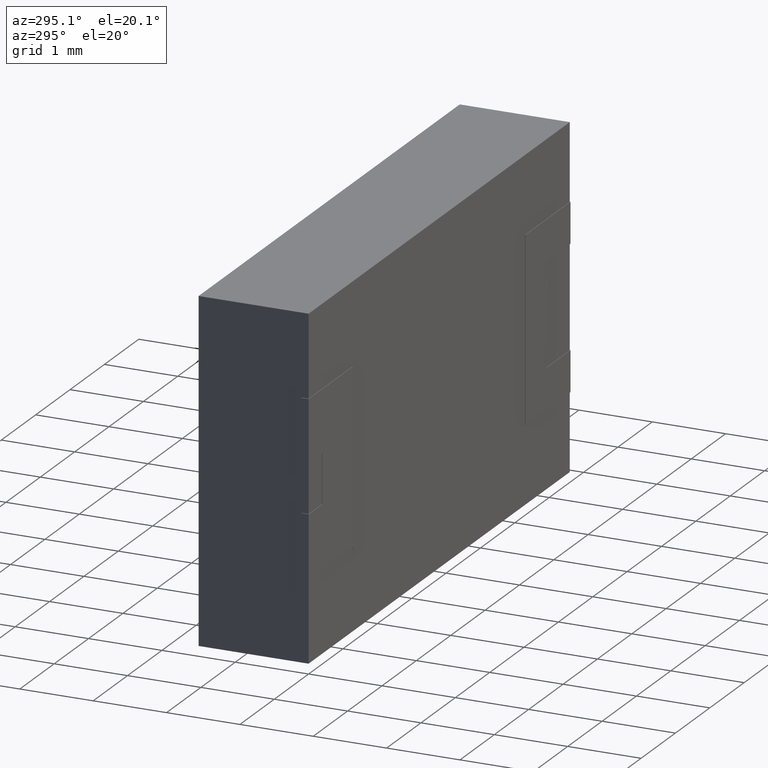
[diagram: clean part render]
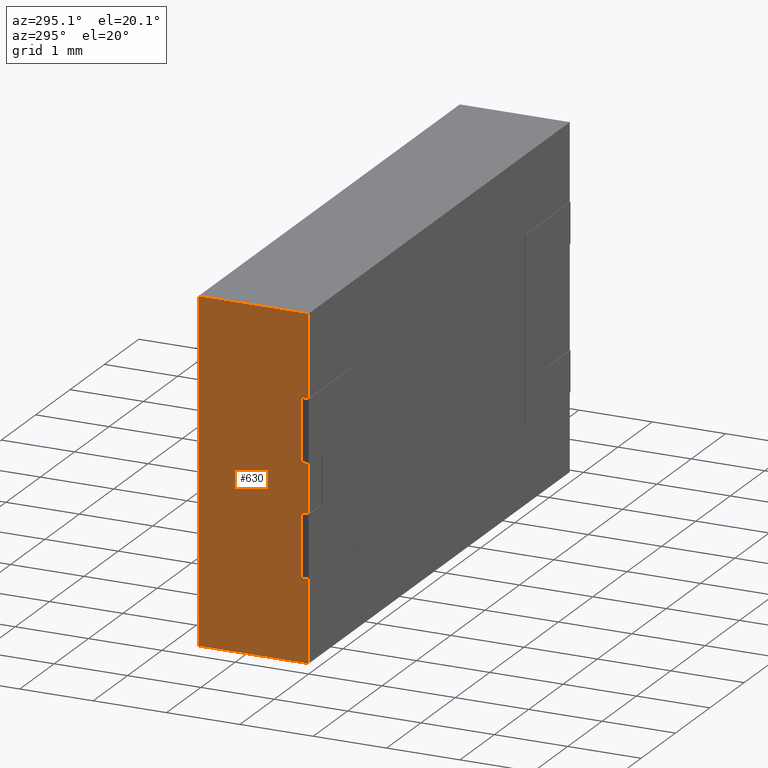
[diagram: same view with one face highlighted and labeled with its STEP entity id]
A machine part, auxiliary view. The second image highlights one B-rep face of the part: STEP entity #630.
In plain terms, the highlighted planar face has unit normal (1, -0, 0).
Its self-contained STEP definition (entity closure, byte-faithful):
#2 = VERTEX_POINT ( 'NONE', #120 ) ;
#52 = CARTESIAN_POINT ( 'NONE',  ( 0.000000000000000000, 0.000000000000000000, -3.482766509652099440 ) ) ;
#54 = VERTEX_POINT ( 'NONE', #2719 ) ;
#56 = EDGE_CURVE ( 'NONE', #340, #2, #1549, .T. ) ;
#105 = ORIENTED_EDGE ( 'NONE', *, *, #532, .F. ) ;
#120 = CARTESIAN_POINT ( 'NONE',  ( 0.000000000000000000, 0.000000000000000000, -1.967233490347899627 ) ) ;
#125 = CARTESIAN_POINT ( 'NONE',  ( 0.000000000000000000, 0.09500000000000000111, -3.482766509652099440 ) ) ;
#148 = LINE ( 'NONE', #355, #1706 ) ;
#159 = ORIENTED_EDGE ( 'NONE', *, *, #1642, .F. ) ;
#175 = VECTOR ( 'NONE', #1440, 1000.000000000000000 ) ;
#194 = ORIENTED_EDGE ( 'NONE', *, *, #2772, .T. ) ;
#208 = CARTESIAN_POINT ( 'NONE',  ( 0.000000000000000000, 1.500000000000000000, -4.599999999999999645 ) ) ;
#211 = AXIS2_PLACEMENT_3D ( 'NONE', #1684, #1241, #1485 ) ;
#217 = LINE ( 'NONE', #1130, #561 ) ;
#256 = CARTESIAN_POINT ( 'NONE',  ( 0.000000000000000000, 0.09500000000000000111, -1.967233490347899627 ) ) ;
#261 = CARTESIAN_POINT ( 'NONE',  ( 0.000000000000000000, 0.000000000000000000, 0.000000000000000000 ) ) ;
#268 = VECTOR ( 'NONE', #1944, 1000.000000000000000 ) ;
#291 = EDGE_CURVE ( 'NONE', #2261, #1171, #520, .T. ) ;
#295 = DIRECTION ( 'NONE',  ( -0.000000000000000000, -0.000000000000000000, 1.000000000000000000 ) ) ;
#340 = VERTEX_POINT ( 'NONE', #2820 ) ;
#352 = PLANE ( 'NONE',  #211 ) ;
#355 = CARTESIAN_POINT ( 'NONE',  ( 0.000000000000000000, 0.09500000000000000111, -1.117233490347900426 ) ) ;
#364 = VECTOR ( 'NONE', #295, 1000.000000000000000 ) ;
#369 = CARTESIAN_POINT ( 'NONE',  ( 0.000000000000000000, 0.09500000000000000111, -1.117233490347900426 ) ) ;
#380 = DIRECTION ( 'NONE',  ( -0.000000000000000000, -0.000000000000000000, 1.000000000000000000 ) ) ;
#410 = ORIENTED_EDGE ( 'NONE', *, *, #56, .T. ) ;
#450 = VERTEX_POINT ( 'NONE', #369 ) ;
#520 = LINE ( 'NONE', #1430, #364 ) ;
#523 = ORIENTED_EDGE ( 'NONE', *, *, #2559, .F. ) ;
#532 = EDGE_CURVE ( 'NONE', #1650, #2, #1155, .T. ) ;
#552 = ORIENTED_EDGE ( 'NONE', *, *, #864, .F. ) ;
#561 = VECTOR ( 'NONE', #1821, 1000.000000000000000 ) ;
#594 = LINE ( 'NONE', #2428, #1937 ) ;
#630 = ADVANCED_FACE ( 'NONE', ( #2359 ), #352, .F. ) ;
#640 = VECTOR ( 'NONE', #2299, 1000.000000000000000 ) ;
#745 = CARTESIAN_POINT ( 'NONE',  ( 0.000000000000000000, 0.09500000000000000111, -1.967233490347899627 ) ) ;
#757 = VERTEX_POINT ( 'NONE', #845 ) ;
#792 = LINE ( 'NONE', #125, #2520 ) ;
#845 = CARTESIAN_POINT ( 'NONE',  ( 0.000000000000000000, 0.000000000000000000, -4.599999999999999645 ) ) ;
#864 = EDGE_CURVE ( 'NONE', #1688, #54, #924, .T. ) ;
#924 = LINE ( 'NONE', #1833, #2518 ) ;
#939 = LINE ( 'NONE', #2331, #1895 ) ;
#1021 = CARTESIAN_POINT ( 'NONE',  ( 0.000000000000000000, 0.09500000000000000111, -2.632766509652100240 ) ) ;
#1050 = LINE ( 'NONE', #1021, #1080 ) ;
#1080 = VECTOR ( 'NONE', #1277, 1000.000000000000000 ) ;
#1111 = EDGE_CURVE ( 'NONE', #757, #1591, #594, .T. ) ;
#1130 = CARTESIAN_POINT ( 'NONE',  ( 0.000000000000000000, 0.09500000000000000111, -2.632766509652100240 ) ) ;
#1137 = EDGE_LOOP ( 'NONE', ( #194, #410, #105, #2403, #1572, #2353, #523, #552, #1924, #1146, #2649, #159 ) ) ;
#1146 = ORIENTED_EDGE ( 'NONE', *, *, #1111, .T. ) ;
#1155 = LINE ( 'NONE', #256, #640 ) ;
#1171 = VERTEX_POINT ( 'NONE', #261 ) ;
#1178 = CARTESIAN_POINT ( 'NONE',  ( 0.000000000000000000, 0.09500000000000000111, -3.482766509652099440 ) ) ;
#1216 = LINE ( 'NONE', #1964, #268 ) ;
#1241 = DIRECTION ( 'NONE',  ( 1.000000000000000000, -0.000000000000000000, 0.000000000000000000 ) ) ;
#1261 = LINE ( 'NONE', #745, #175 ) ;
#1277 = DIRECTION ( 'NONE',  ( 0.000000000000000000, 0.000000000000000000, -1.000000000000000000 ) ) ;
#1399 = CARTESIAN_POINT ( 'NONE',  ( 0.000000000000000000, 0.09500000000000000111, -2.632766509652100240 ) ) ;
#1430 = CARTESIAN_POINT ( 'NONE',  ( 0.000000000000000000, 0.000000000000000000, 0.000000000000000000 ) ) ;
#1440 = DIRECTION ( 'NONE',  ( 0.000000000000000000, 0.000000000000000000, 1.000000000000000000 ) ) ;
#1485 = DIRECTION ( 'NONE',  ( 0.000000000000000000, 0.000000000000000000, -1.000000000000000000 ) ) ;
#1549 = LINE ( 'NONE', #1566, #1617 ) ;
#1554 = VERTEX_POINT ( 'NONE', #1399 ) ;
#1566 = CARTESIAN_POINT ( 'NONE',  ( 0.000000000000000000, 0.000000000000000000, 0.000000000000000000 ) ) ;
#1572 = ORIENTED_EDGE ( 'NONE', *, *, #2670, .T. ) ;
#1580 = DIRECTION ( 'NONE',  ( -0.000000000000000000, -0.000000000000000000, 1.000000000000000000 ) ) ;
#1591 = VERTEX_POINT ( 'NONE', #52 ) ;
#1617 = VECTOR ( 'NONE', #1580, 1000.000000000000000 ) ;
#1641 = DIRECTION ( 'NONE',  ( -0.000000000000000000, -1.000000000000000000, -0.000000000000000000 ) ) ;
#1642 = EDGE_CURVE ( 'NONE', #1554, #2624, #1050, .T. ) ;
#1650 = VERTEX_POINT ( 'NONE', #1918 ) ;
#1684 = CARTESIAN_POINT ( 'NONE',  ( 0.000000000000000000, 1.500000000000000000, 0.000000000000000000 ) ) ;
#1688 = VERTEX_POINT ( 'NONE', #208 ) ;
#1706 = VECTOR ( 'NONE', #2619, 1000.000000000000000 ) ;
#1821 = DIRECTION ( 'NONE',  ( 0.000000000000000000, -1.000000000000000000, 0.000000000000000000 ) ) ;
#1833 = CARTESIAN_POINT ( 'NONE',  ( 0.000000000000000000, 1.500000000000000000, 0.000000000000000000 ) ) ;
#1855 = CARTESIAN_POINT ( 'NONE',  ( 0.000000000000000000, 0.000000000000000000, -1.117233490347900426 ) ) ;
#1895 = VECTOR ( 'NONE', #1641, 1000.000000000000000 ) ;
#1918 = CARTESIAN_POINT ( 'NONE',  ( 0.000000000000000000, 0.09500000000000000111, -1.967233490347899627 ) ) ;
#1924 = ORIENTED_EDGE ( 'NONE', *, *, #2392, .T. ) ;
#1937 = VECTOR ( 'NONE', #380, 1000.000000000000000 ) ;
#1944 = DIRECTION ( 'NONE',  ( -0.000000000000000000, -1.000000000000000000, -0.000000000000000000 ) ) ;
#1964 = CARTESIAN_POINT ( 'NONE',  ( 0.000000000000000000, 1.500000000000000000, -4.599999999999999645 ) ) ;
#2261 = VERTEX_POINT ( 'NONE', #1855 ) ;
#2299 = DIRECTION ( 'NONE',  ( 0.000000000000000000, -1.000000000000000000, 0.000000000000000000 ) ) ;
#2331 = CARTESIAN_POINT ( 'NONE',  ( 0.000000000000000000, 1.500000000000000000, 0.000000000000000000 ) ) ;
#2353 = ORIENTED_EDGE ( 'NONE', *, *, #291, .T. ) ;
#2359 = FACE_OUTER_BOUND ( 'NONE', #1137, .T. ) ;
#2382 = EDGE_CURVE ( 'NONE', #1650, #450, #1261, .T. ) ;
#2392 = EDGE_CURVE ( 'NONE', #1688, #757, #1216, .T. ) ;
#2395 = EDGE_CURVE ( 'NONE', #2624, #1591, #792, .T. ) ;
#2403 = ORIENTED_EDGE ( 'NONE', *, *, #2382, .T. ) ;
#2428 = CARTESIAN_POINT ( 'NONE',  ( 0.000000000000000000, 0.000000000000000000, 0.000000000000000000 ) ) ;
#2518 = VECTOR ( 'NONE', #2522, 1000.000000000000000 ) ;
#2520 = VECTOR ( 'NONE', #2584, 1000.000000000000000 ) ;
#2522 = DIRECTION ( 'NONE',  ( -0.000000000000000000, -0.000000000000000000, 1.000000000000000000 ) ) ;
#2559 = EDGE_CURVE ( 'NONE', #54, #1171, #939, .T. ) ;
#2584 = DIRECTION ( 'NONE',  ( 0.000000000000000000, -1.000000000000000000, 0.000000000000000000 ) ) ;
#2619 = DIRECTION ( 'NONE',  ( 0.000000000000000000, -1.000000000000000000, 0.000000000000000000 ) ) ;
#2624 = VERTEX_POINT ( 'NONE', #1178 ) ;
#2649 = ORIENTED_EDGE ( 'NONE', *, *, #2395, .F. ) ;
#2670 = EDGE_CURVE ( 'NONE', #450, #2261, #148, .T. ) ;
#2719 = CARTESIAN_POINT ( 'NONE',  ( 0.000000000000000000, 1.500000000000000000, 0.000000000000000000 ) ) ;
#2772 = EDGE_CURVE ( 'NONE', #1554, #340, #217, .T. ) ;
#2820 = CARTESIAN_POINT ( 'NONE',  ( 0.000000000000000000, 0.000000000000000000, -2.632766509652100240 ) ) ;